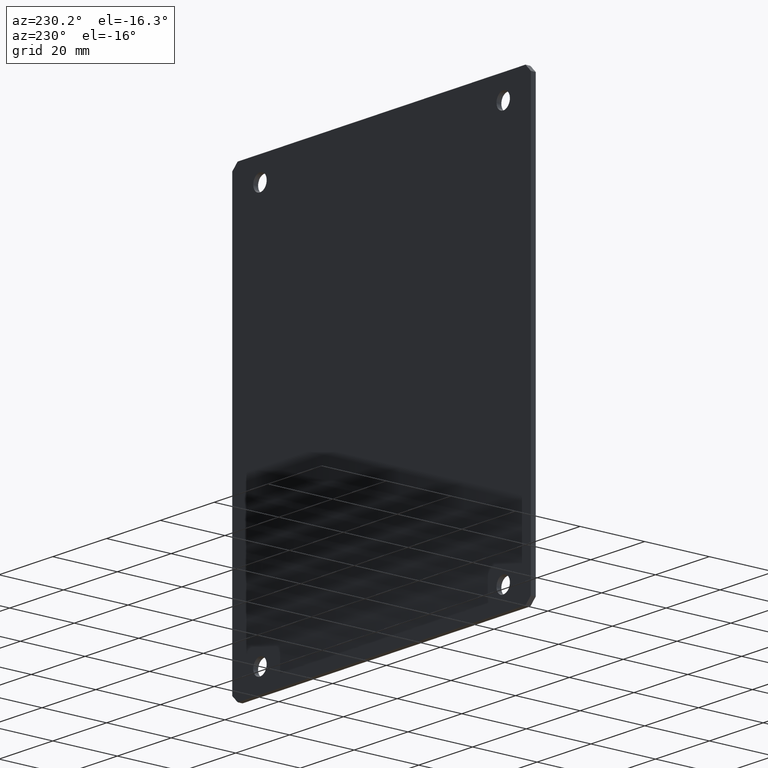
[diagram: clean part render]
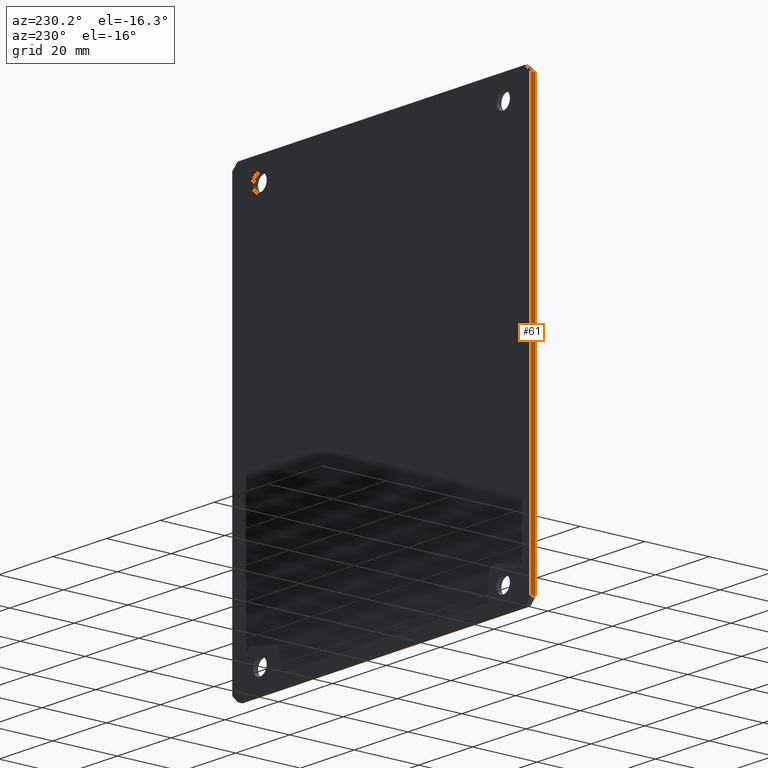
[diagram: same view with one face highlighted and labeled with its STEP entity id]
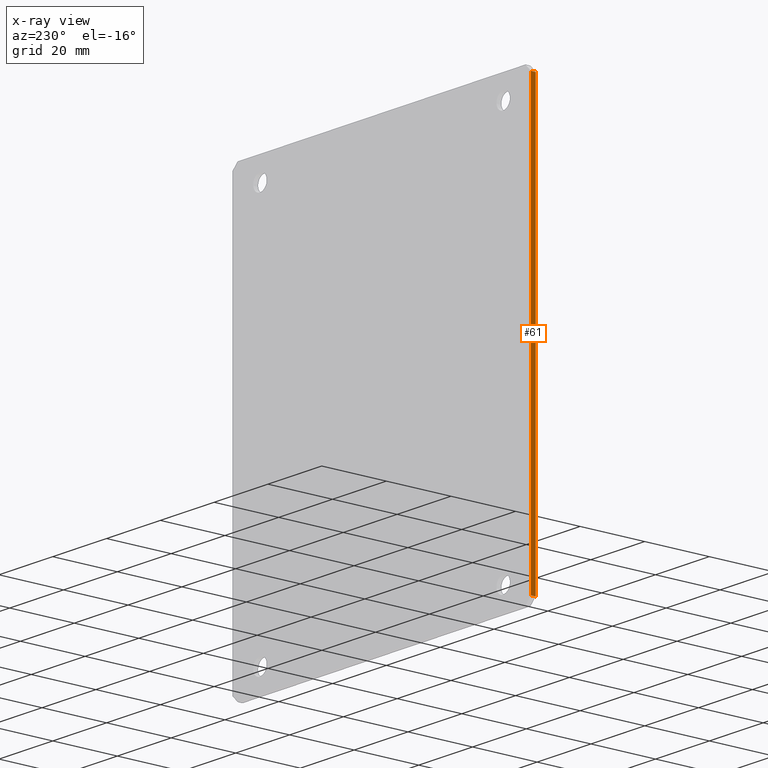
[diagram: x-ray of the same camera — body ghosted, the highlighted face saturated]
A machine part, auxiliary view. The second image highlights one B-rep face of the part: STEP entity #61.
The next image is the same camera in x-ray: the body ghosted, the highlighted face saturated — about 0% of this face is hidden behind the body in this view.
In plain terms, the highlighted planar face has unit normal (1, -0, 0).
Its self-contained STEP definition (entity closure, byte-faithful):
#11 = VERTEX_POINT ( 'NONE', #314 ) ;
#61 = ADVANCED_FACE ( 'NONE', ( #214 ), #213, .F. ) ;
#62 = ORIENTED_EDGE ( 'NONE', *, *, #74, .T. ) ;
#63 = ORIENTED_EDGE ( 'NONE', *, *, #64, .F. ) ;
#64 = EDGE_CURVE ( 'NONE', #86, #181, #348, .T. ) ;
#65 = ORIENTED_EDGE ( 'NONE', *, *, #123, .F. ) ;
#66 = ORIENTED_EDGE ( 'NONE', *, *, #371, .T. ) ;
#74 = EDGE_CURVE ( 'NONE', #11, #181, #197, .T. ) ;
#86 = VERTEX_POINT ( 'NONE', #380 ) ;
#121 = VERTEX_POINT ( 'NONE', #600 ) ;
#123 = EDGE_CURVE ( 'NONE', #121, #86, #568, .T. ) ;
#181 = VERTEX_POINT ( 'NONE', #529 ) ;
#194 = DIRECTION ( 'NONE',  ( -0.0000000000000000000, -0.0000000000000000000, 1.000000000000000000 ) ) ;
#195 = VECTOR ( 'NONE', #194, 1000.000000000000000 ) ;
#196 = CARTESIAN_POINT ( 'NONE',  ( -55.49999999999999300, 0.0000000000000000000, 65.00000000000000000 ) ) ;
#197 = LINE ( 'NONE', #196, #195 ) ;
#209 = DIRECTION ( 'NONE',  ( 0.0000000000000000000, 0.0000000000000000000, -1.000000000000000000 ) ) ;
#210 = DIRECTION ( 'NONE',  ( 1.000000000000000000, -0.0000000000000000000, 0.0000000000000000000 ) ) ;
#211 = CARTESIAN_POINT ( 'NONE',  ( -55.49999999999999300, 1.500000000000000000, 65.00000000000000000 ) ) ;
#212 = AXIS2_PLACEMENT_3D ( 'NONE', #211, #210, #209 ) ;
#213 = PLANE ( 'NONE',  #212 ) ;
#214 = FACE_OUTER_BOUND ( 'NONE', #268, .T. ) ;
#268 = EDGE_LOOP ( 'NONE', ( #62, #63, #65, #66 ) ) ;
#314 = CARTESIAN_POINT ( 'NONE',  ( -55.49999999999999300, 0.0000000000000000000, -65.00000000000000000 ) ) ;
#345 = DIRECTION ( 'NONE',  ( -0.0000000000000000000, -1.000000000000000000, -0.0000000000000000000 ) ) ;
#346 = VECTOR ( 'NONE', #345, 1000.000000000000000 ) ;
#347 = CARTESIAN_POINT ( 'NONE',  ( -55.49999999999999300, 1.500000000000000000, 65.00000000000000000 ) ) ;
#348 = LINE ( 'NONE', #347, #346 ) ;
#371 = EDGE_CURVE ( 'NONE', #121, #11, #444, .T. ) ;
#380 = CARTESIAN_POINT ( 'NONE',  ( -55.49999999999999300, 1.500000000000000000, 65.00000000000000000 ) ) ;
#444 = LINE ( 'NONE', #506, #505 ) ;
#504 = DIRECTION ( 'NONE',  ( -0.0000000000000000000, -1.000000000000000000, -0.0000000000000000000 ) ) ;
#505 = VECTOR ( 'NONE', #504, 1000.000000000000000 ) ;
#506 = CARTESIAN_POINT ( 'NONE',  ( -55.49999999999999300, 1.500000000000000000, -65.00000000000000000 ) ) ;
#529 = CARTESIAN_POINT ( 'NONE',  ( -55.49999999999999300, 0.0000000000000000000, 65.00000000000000000 ) ) ;
#565 = DIRECTION ( 'NONE',  ( -0.0000000000000000000, -0.0000000000000000000, 1.000000000000000000 ) ) ;
#566 = VECTOR ( 'NONE', #565, 1000.000000000000000 ) ;
#567 = CARTESIAN_POINT ( 'NONE',  ( -55.49999999999999300, 1.500000000000000000, 65.00000000000000000 ) ) ;
#568 = LINE ( 'NONE', #567, #566 ) ;
#600 = CARTESIAN_POINT ( 'NONE',  ( -55.49999999999999300, 1.500000000000000000, -65.00000000000000000 ) ) ;